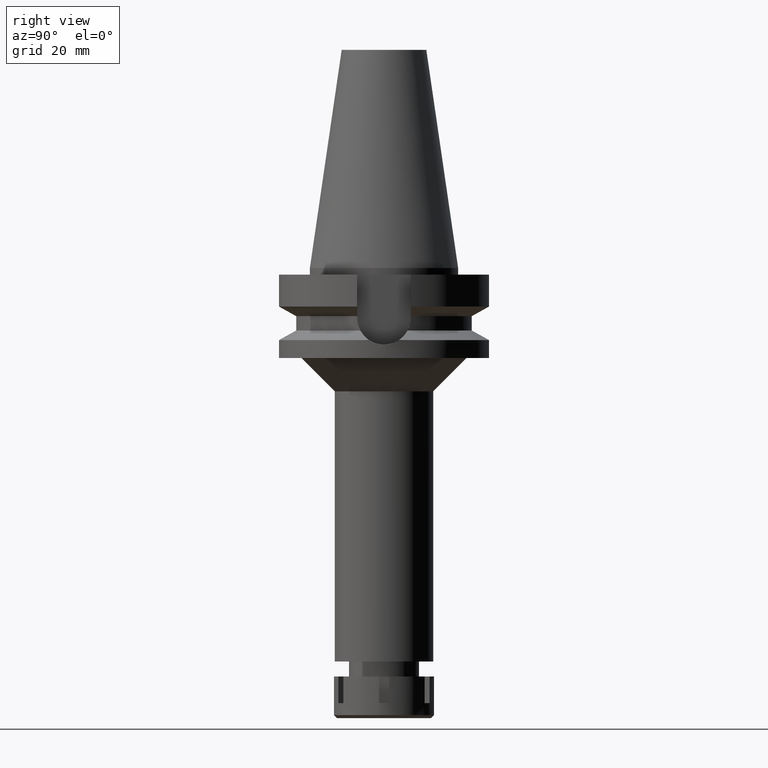
[diagram: clean part render]
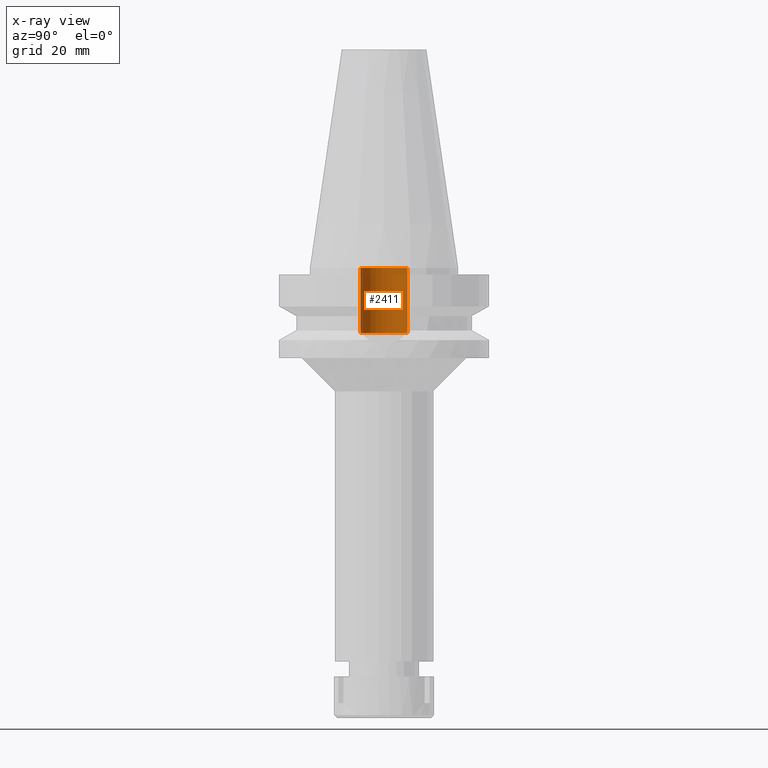
[diagram: x-ray — body ghosted, one internal face saturated and labeled with its STEP entity id]
A machine part, right view, then the same camera in x-ray: the body is ghosted and one INTERNAL B-rep face — a face not visible from any outside direction — is saturated and labeled: STEP entity #2411.
In plain terms, the highlighted cylindrical surface (edge-blend (fillet) strip) has radius 7.1 mm, axis along (0, 0, -1).
Its self-contained STEP definition (entity closure, byte-faithful):
#32 = LINE ( 'NONE', #1832, #2336 ) ;
#196 = CYLINDRICAL_SURFACE ( 'NONE', #1589, 7.100000000000000533 ) ;
#223 = CIRCLE ( 'NONE', #2936, 7.100000000000000533 ) ;
#466 = DIRECTION ( 'NONE',  ( 0.0000000000000000000, 0.0000000000000000000, -1.000000000000000000 ) ) ;
#513 = EDGE_CURVE ( 'NONE', #1067, #1214, #32, .T. ) ;
#673 = EDGE_CURVE ( 'NONE', #1067, #2050, #3230, .T. ) ;
#702 = AXIS2_PLACEMENT_3D ( 'NONE', #3417, #1146, #1408 ) ;
#1036 = CARTESIAN_POINT ( 'NONE',  ( 0.0000000000000000000, -7.100000000000000533, -19.59999999999999787 ) ) ;
#1067 = VERTEX_POINT ( 'NONE', #1036 ) ;
#1078 = DIRECTION ( 'NONE',  ( 0.0000000000000000000, 0.0000000000000000000, 1.000000000000000000 ) ) ;
#1109 = ORIENTED_EDGE ( 'NONE', *, *, #673, .T. ) ;
#1121 = EDGE_CURVE ( 'NONE', #1214, #1684, #223, .T. ) ;
#1146 = DIRECTION ( 'NONE',  ( 0.0000000000000000000, 0.0000000000000000000, -1.000000000000000000 ) ) ;
#1214 = VERTEX_POINT ( 'NONE', #2301 ) ;
#1360 = DIRECTION ( 'NONE',  ( 0.0000000000000000000, 0.0000000000000000000, -1.000000000000000000 ) ) ;
#1408 = DIRECTION ( 'NONE',  ( 0.0000000000000000000, -1.000000000000000000, 0.0000000000000000000 ) ) ;
#1589 = AXIS2_PLACEMENT_3D ( 'NONE', #1865, #466, #1887 ) ;
#1684 = VERTEX_POINT ( 'NONE', #2008 ) ;
#1724 = VECTOR ( 'NONE', #1078, 1000.000000000000000 ) ;
#1832 = CARTESIAN_POINT ( 'NONE',  ( 0.0000000000000000000, -7.100000000000000533, -19.59999999999999787 ) ) ;
#1865 = CARTESIAN_POINT ( 'NONE',  ( 0.0000000000000000000, 2.143989151267000102E-14, 75.06999999999999318 ) ) ;
#1883 = CARTESIAN_POINT ( 'NONE',  ( 0.0000000000000000000, 7.100000000000000533, -19.59999999999999787 ) ) ;
#1887 = DIRECTION ( 'NONE',  ( 0.0000000000000000000, -1.000000000000000000, 0.0000000000000000000 ) ) ;
#1937 = LINE ( 'NONE', #1883, #1724 ) ;
#1983 = EDGE_LOOP ( 'NONE', ( #2308, #3558, #1109, #3305 ) ) ;
#2008 = CARTESIAN_POINT ( 'NONE',  ( 0.0000000000000000000, 7.100000000000000533, 0.0000000000000000000 ) ) ;
#2050 = VERTEX_POINT ( 'NONE', #2989 ) ;
#2185 = CARTESIAN_POINT ( 'NONE',  ( 0.0000000000000000000, 2.143989151267000102E-14, 1.421085471519999843E-14 ) ) ;
#2301 = CARTESIAN_POINT ( 'NONE',  ( 0.0000000000000000000, -7.100000000000000533, 0.0000000000000000000 ) ) ;
#2308 = ORIENTED_EDGE ( 'NONE', *, *, #1121, .F. ) ;
#2336 = VECTOR ( 'NONE', #2596, 1000.000000000000000 ) ;
#2411 = ADVANCED_FACE ( 'NONE', ( #2982 ), #196, .F. ) ;
#2572 = DIRECTION ( 'NONE',  ( 0.0000000000000000000, -1.000000000000000000, 0.0000000000000000000 ) ) ;
#2596 = DIRECTION ( 'NONE',  ( 0.0000000000000000000, 0.0000000000000000000, 1.000000000000000000 ) ) ;
#2936 = AXIS2_PLACEMENT_3D ( 'NONE', #2185, #1360, #2572 ) ;
#2982 = FACE_OUTER_BOUND ( 'NONE', #1983, .T. ) ;
#2989 = CARTESIAN_POINT ( 'NONE',  ( 0.0000000000000000000, 7.100000000000000533, -19.59999999999999787 ) ) ;
#3230 = CIRCLE ( 'NONE', #702, 7.100000000000000533 ) ;
#3305 = ORIENTED_EDGE ( 'NONE', *, *, #3566, .T. ) ;
#3417 = CARTESIAN_POINT ( 'NONE',  ( 0.0000000000000000000, 2.143989151267000102E-14, -19.59999999999999787 ) ) ;
#3558 = ORIENTED_EDGE ( 'NONE', *, *, #513, .F. ) ;
#3566 = EDGE_CURVE ( 'NONE', #2050, #1684, #1937, .T. ) ;